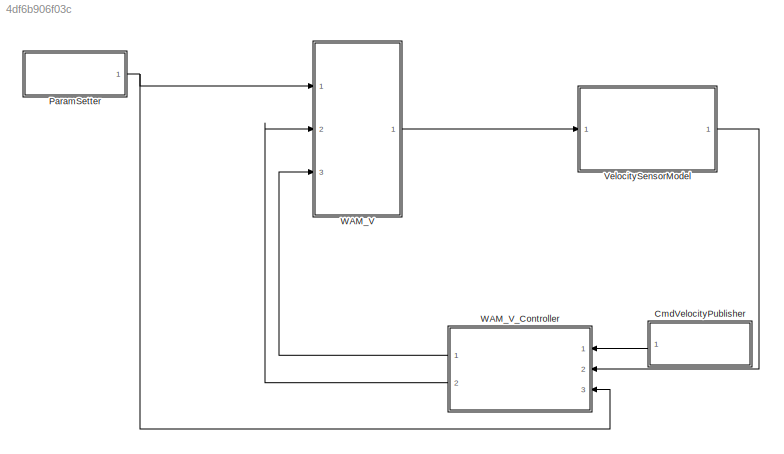
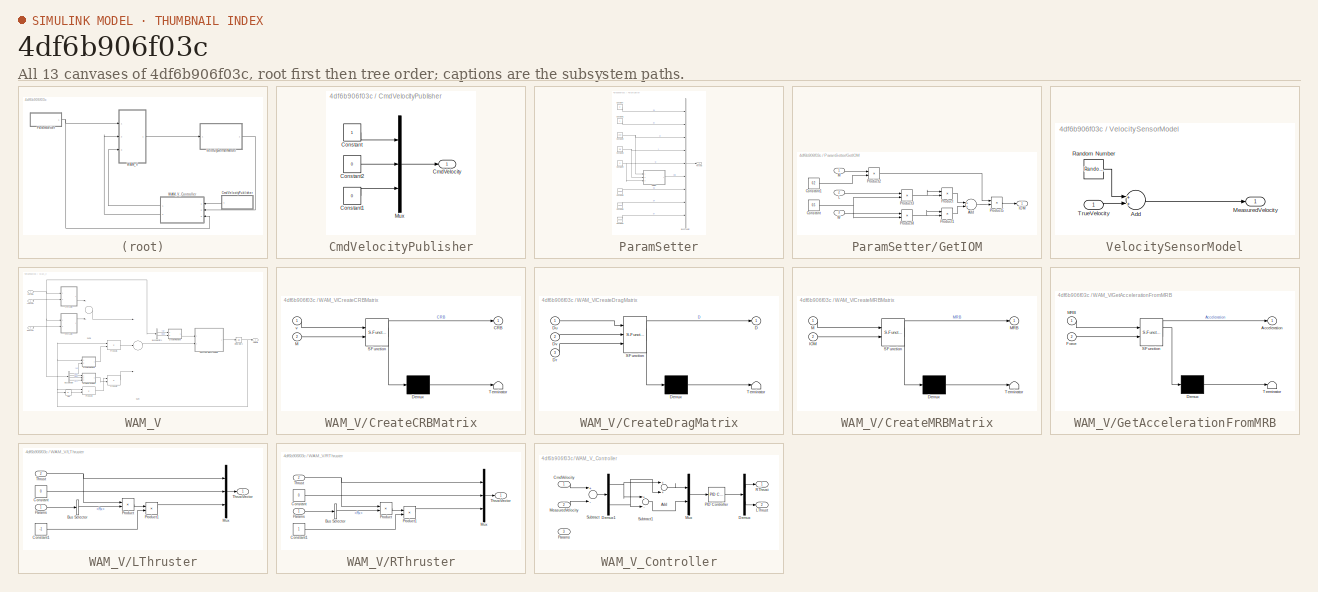
[diagram: thumbnail index - all 13 canvases of the model, root first then tree order]
MODEL slx_4df6b906f03c
KIND model
CONFIG AbsTol = auto
CONFIG EnableMultiTasking = off
CONFIG FixedStep = 0.001
CONFIG MaxStep = auto
CONFIG MinStep = auto
CONFIG RelTol = 1e-3
CONFIG SampleTimeConstraint = Unconstrained
CONFIG Solver = VariableStepAuto
CONFIG SolverName = VariableStepAuto
CONFIG StartTime = 0.0
CONFIG StopTime = 10
BLOCK [SubSystem] CmdVelocityPublisher
  Ports = [0, 1]
  RequestExecContextInheritance = off
  Variant = off
BLOCK [Outport] CmdVelocityPublisher/CmdVelocity
  IconDisplay = Port number
BLOCK [Constant] CmdVelocityPublisher/Constant
BLOCK [Constant] CmdVelocityPublisher/Constant1
  Value = 0
BLOCK [Constant] CmdVelocityPublisher/Constant2
  Value = 0
BLOCK [Mux] CmdVelocityPublisher/Mux
  DisplayOption = bar
  Inputs = 3
  Ports = [3, 1]
BLOCK [SubSystem] ParamSetter
  Ports = [0, 1]
  RequestExecContextInheritance = off
  Variant = off
BLOCK [BusCreator] ParamSetter/Bus Creator
  DisplayOption = bar
  InheritFromInputs = on
  Inputs = 9
  Ports = [9, 1]
BLOCK [Constant] ParamSetter/Constant
  Value = -2
BLOCK [Constant] ParamSetter/Constant1
BLOCK [Constant] ParamSetter/Constant2
  Value = 200
BLOCK [Constant] ParamSetter/Constant3
  Value = 3.5
BLOCK [Constant] ParamSetter/Constant4
  Value = 2
BLOCK [Constant] ParamSetter/Constant5
  Value = 1000
BLOCK [Constant] ParamSetter/Constant6
  Value = 1000
BLOCK [Constant] ParamSetter/Constant7
  Value = 30000
BLOCK [SubSystem] ParamSetter/GetIOM
  Ports = [3, 1]
  RequestExecContextInheritance = off
  Variant = off
BLOCK [Sum] ParamSetter/GetIOM/Add
  InputSameDT = off
  OutDataTypeStr = Inherit: Inherit via internal rule
  Ports = [2, 1]
  SaturateOnIntegerOverflow = off
BLOCK [Constant] ParamSetter/GetIOM/Constant
  Value = 0.5
BLOCK [Constant] ParamSetter/GetIOM/Constant1
  Value = 0.2
BLOCK [Outport] ParamSetter/GetIOM/IOM
  IconDisplay = Port number
BLOCK [Inport] ParamSetter/GetIOM/L
  IconDisplay = Port number
  Port = 2
BLOCK [Inport] ParamSetter/GetIOM/M
  IconDisplay = Port number
BLOCK [Product] ParamSetter/GetIOM/Product
  InputSameDT = off
  OutDataTypeStr = Inherit: Inherit via internal rule
  Ports = [2, 1]
  RndMeth = Floor
  SaturateOnIntegerOverflow = off
BLOCK [Product] ParamSetter/GetIOM/Product1
  InputSameDT = off
  OutDataTypeStr = Inherit: Inherit via internal rule
  Ports = [2, 1]
  RndMeth = Floor
  SaturateOnIntegerOverflow = off
BLOCK [Product] ParamSetter/GetIOM/Product2
  InputSameDT = off
  OutDataTypeStr = Inherit: Inherit via internal rule
  Ports = [2, 1]
  RndMeth = Floor
  SaturateOnIntegerOverflow = off
BLOCK [Product] ParamSetter/GetIOM/Product3
  InputSameDT = off
  OutDataTypeStr = Inherit: Inherit via internal rule
  Ports = [2, 1]
  RndMeth = Floor
  SaturateOnIntegerOverflow = off
BLOCK [Product] ParamSetter/GetIOM/Product4
  InputSameDT = off
  OutDataTypeStr = Inherit: Inherit via internal rule
  Ports = [2, 1]
  RndMeth = Floor
  SaturateOnIntegerOverflow = off
BLOCK [Product] ParamSetter/GetIOM/Product5
  InputSameDT = off
  OutDataTypeStr = Inherit: Inherit via internal rule
  Ports = [2, 1]
  RndMeth = Floor
  SaturateOnIntegerOverflow = off
BLOCK [Inport] ParamSetter/GetIOM/W
  IconDisplay = Port number
  Port = 3
BLOCK [Outport] ParamSetter/Params
  IconDisplay = Port number
BLOCK [SubSystem] VelocitySensorModel
  Ports = [1, 1]
  RequestExecContextInheritance = off
  Variant = off
BLOCK [Sum] VelocitySensorModel/Add
  InputSameDT = off
  OutDataTypeStr = Inherit: Inherit via internal rule
  Ports = [2, 1]
  SaturateOnIntegerOverflow = off
BLOCK [Outport] VelocitySensorModel/MeasuredVelocity
  IconDisplay = Port number
BLOCK [RandomNumber] VelocitySensorModel/Random Number
  SampleTime = 0.1
  Variance = 0
BLOCK [Inport] VelocitySensorModel/TrueVelocity
  IconDisplay = Port number
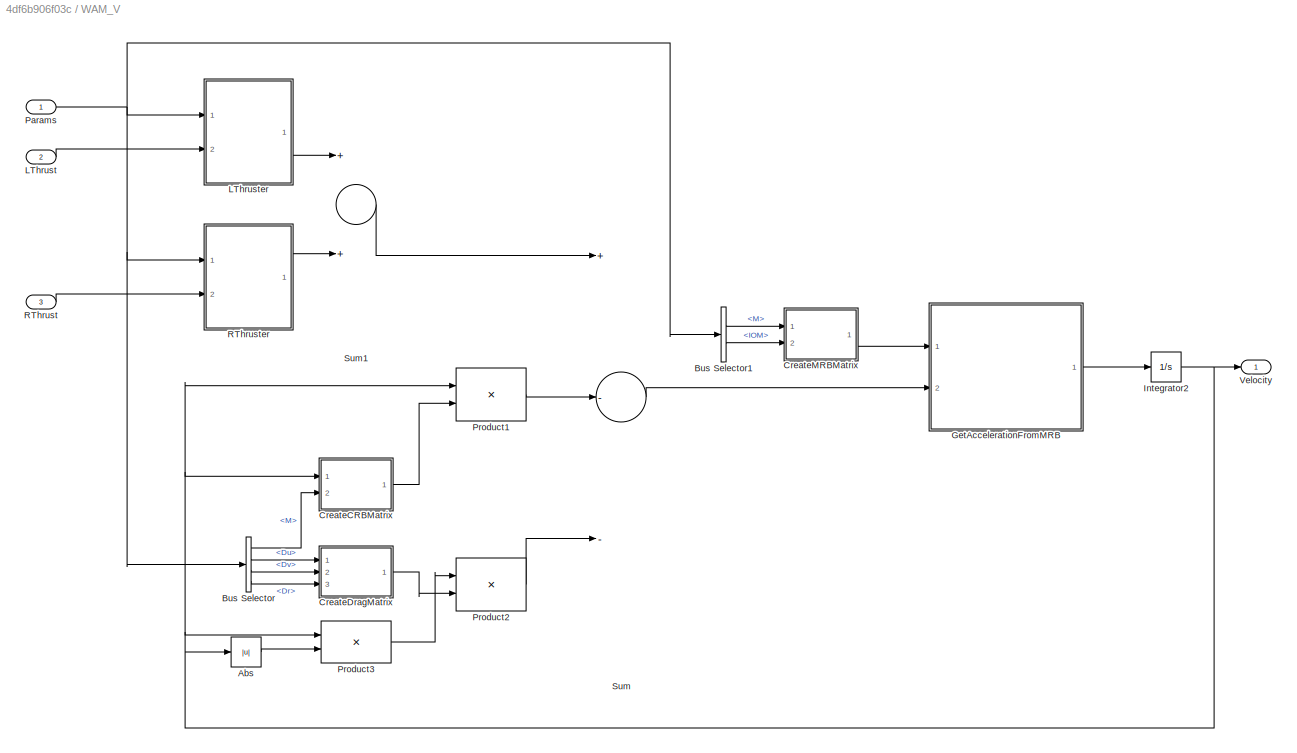
BLOCK [SubSystem] WAM_V
  Ports = [3, 1]
  RequestExecContextInheritance = off
  Variant = off
BLOCK [Abs] WAM_V/Abs
  SaturateOnIntegerOverflow = off
BLOCK [BusSelector] WAM_V/Bus Selector
  OutputAsBus = off
  OutputSignals = M,Du,Dv,Dr
  Ports = [1, 4]
BLOCK [BusSelector] WAM_V/Bus Selector1
  OutputAsBus = off
  OutputSignals = M,IOM
  Ports = [1, 2]
BLOCK [SubSystem] WAM_V/CreateCRBMatrix
  ErrorFcn = Stateflow.Translate.translate
  PermitHierarchicalResolution = ExplicitOnly
  Ports = [2, 1]
  RequestExecContextInheritance = off
  SFBlockType = MATLAB Function
  TreatAsAtomicUnit = on
  Variant = off
BLOCK [Demux] WAM_V/CreateCRBMatrix/ Demux 
  Outputs = 1
  Ports = [1, 1]
BLOCK [S-Function] WAM_V/CreateCRBMatrix/ SFunction 
  EnableBusSupport = on
  FunctionName = sf_sfun
  PortCounts = [2 2]
  Ports = [2, 2]
  SFcnIsStateOwnerBlock = off
  SFunctionDeploymentMode = off
  Tag = Stateflow S-Function wam_v_simulation 1
BLOCK [Terminator] WAM_V/CreateCRBMatrix/ Terminator 
BLOCK [Outport] WAM_V/CreateCRBMatrix/CRB
  IconDisplay = Port number
BLOCK [Inport] WAM_V/CreateCRBMatrix/M
  IconDisplay = Port number
  Port = 2
BLOCK [Inport] WAM_V/CreateCRBMatrix/v
  IconDisplay = Port number
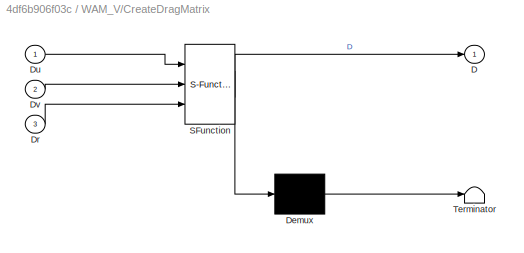
BLOCK [SubSystem] WAM_V/CreateDragMatrix
  ErrorFcn = Stateflow.Translate.translate
  PermitHierarchicalResolution = ExplicitOnly
  Ports = [3, 1]
  RequestExecContextInheritance = off
  SFBlockType = MATLAB Function
  TreatAsAtomicUnit = on
  Variant = off
BLOCK [Demux] WAM_V/CreateDragMatrix/ Demux 
  Outputs = 1
  Ports = [1, 1]
BLOCK [S-Function] WAM_V/CreateDragMatrix/ SFunction 
  EnableBusSupport = on
  FunctionName = sf_sfun
  PortCounts = [3 2]
  Ports = [3, 2]
  SFcnIsStateOwnerBlock = off
  SFunctionDeploymentMode = off
  Tag = Stateflow S-Function wam_v_simulation 2
BLOCK [Terminator] WAM_V/CreateDragMatrix/ Terminator 
BLOCK [Outport] WAM_V/CreateDragMatrix/D
  IconDisplay = Port number
BLOCK [Inport] WAM_V/CreateDragMatrix/Dr
  IconDisplay = Port number
  Port = 3
BLOCK [Inport] WAM_V/CreateDragMatrix/Du
  IconDisplay = Port number
BLOCK [Inport] WAM_V/CreateDragMatrix/Dv
  IconDisplay = Port number
  Port = 2
BLOCK [SubSystem] WAM_V/CreateMRBMatrix
  ErrorFcn = Stateflow.Translate.translate
  PermitHierarchicalResolution = ExplicitOnly
  Ports = [2, 1]
  RequestExecContextInheritance = off
  SFBlockType = MATLAB Function
  TreatAsAtomicUnit = on
  Variant = off
BLOCK [Demux] WAM_V/CreateMRBMatrix/ Demux 
  Outputs = 1
  Ports = [1, 1]
BLOCK [S-Function] WAM_V/CreateMRBMatrix/ SFunction 
  EnableBusSupport = on
  FunctionName = sf_sfun
  PortCounts = [2 2]
  Ports = [2, 2]
  SFcnIsStateOwnerBlock = off
  SFunctionDeploymentMode = off
  Tag = Stateflow S-Function wam_v_simulation 3
BLOCK [Terminator] WAM_V/CreateMRBMatrix/ Terminator 
BLOCK [Inport] WAM_V/CreateMRBMatrix/IOM
  IconDisplay = Port number
  Port = 2
BLOCK [Inport] WAM_V/CreateMRBMatrix/M
  IconDisplay = Port number
BLOCK [Outport] WAM_V/CreateMRBMatrix/MRB
  IconDisplay = Port number
BLOCK [SubSystem] WAM_V/GetAccelerationFromMRB
  ErrorFcn = Stateflow.Translate.translate
  PermitHierarchicalResolution = ExplicitOnly
  Ports = [2, 1]
  RequestExecContextInheritance = off
  SFBlockType = MATLAB Function
  TreatAsAtomicUnit = on
  Variant = off
BLOCK [Demux] WAM_V/GetAccelerationFromMRB/ Demux 
  Outputs = 1
  Ports = [1, 1]
BLOCK [S-Function] WAM_V/GetAccelerationFromMRB/ SFunction 
  EnableBusSupport = on
  FunctionName = sf_sfun
  PortCounts = [2 2]
  Ports = [2, 2]
  SFcnIsStateOwnerBlock = off
  SFunctionDeploymentMode = off
  Tag = Stateflow S-Function wam_v_simulation 4
BLOCK [Terminator] WAM_V/GetAccelerationFromMRB/ Terminator 
BLOCK [Outport] WAM_V/GetAccelerationFromMRB/Acceleration
  IconDisplay = Port number
BLOCK [Inport] WAM_V/GetAccelerationFromMRB/Force
  IconDisplay = Port number
  Port = 2
BLOCK [Inport] WAM_V/GetAccelerationFromMRB/MRB
  IconDisplay = Port number
BLOCK [Integrator] WAM_V/Integrator2
  Ports = [1, 1]
BLOCK [Inport] WAM_V/LThrust
  IconDisplay = Port number
  Port = 2
BLOCK [SubSystem] WAM_V/LThruster
  Ports = [2, 1]
  RequestExecContextInheritance = off
  Variant = off
BLOCK [BusSelector] WAM_V/LThruster/Bus Selector
  OutputAsBus = off
  OutputSignals = Rx
  Ports = [1, 1]
BLOCK [Constant] WAM_V/LThruster/Constant
  Value = 0
BLOCK [Constant] WAM_V/LThruster/Constant1
  Value = -1
BLOCK [Mux] WAM_V/LThruster/Mux
  DisplayOption = bar
  Inputs = 3
  Ports = [3, 1]
BLOCK [Inport] WAM_V/LThruster/Params
  IconDisplay = Port number
BLOCK [Product] WAM_V/LThruster/Product
  InputSameDT = off
  OutDataTypeStr = Inherit: Inherit via internal rule
  Ports = [2, 1]
  RndMeth = Floor
  SaturateOnIntegerOverflow = off
BLOCK [Product] WAM_V/LThruster/Product1
  InputSameDT = off
  OutDataTypeStr = Inherit: Inherit via internal rule
  Ports = [2, 1]
  RndMeth = Floor
  SaturateOnIntegerOverflow = off
BLOCK [Inport] WAM_V/LThruster/Thrust
  IconDisplay = Port number
  Port = 2
BLOCK [Outport] WAM_V/LThruster/ThrustVector
  IconDisplay = Port number
BLOCK [Inport] WAM_V/Params
  IconDisplay = Port number
BLOCK [Product] WAM_V/Product1
  InputSameDT = off
  Multiplication = Matrix(*)
  OutDataTypeStr = Inherit: Inherit via internal rule
  Ports = [2, 1]
  RndMeth = Floor
  SaturateOnIntegerOverflow = off
BLOCK [Product] WAM_V/Product2
  InputSameDT = off
  Multiplication = Matrix(*)
  OutDataTypeStr = Inherit: Inherit via internal rule
  Ports = [2, 1]
  RndMeth = Floor
  SaturateOnIntegerOverflow = off
BLOCK [Product] WAM_V/Product3
  InputSameDT = off
  OutDataTypeStr = Inherit: Inherit via internal rule
  Ports = [2, 1]
  RndMeth = Floor
  SaturateOnIntegerOverflow = off
BLOCK [Inport] WAM_V/RThrust
  IconDisplay = Port number
  Port = 3
BLOCK [SubSystem] WAM_V/RThruster
  Ports = [2, 1]
  RequestExecContextInheritance = off
  Variant = off
BLOCK [BusSelector] WAM_V/RThruster/Bus Selector
  OutputAsBus = off
  OutputSignals = Rx
  Ports = [1, 1]
BLOCK [Constant] WAM_V/RThruster/Constant
  Value = 0
BLOCK [Constant] WAM_V/RThruster/Constant1
BLOCK [Mux] WAM_V/RThruster/Mux
  DisplayOption = bar
  Inputs = 3
  Ports = [3, 1]
BLOCK [Inport] WAM_V/RThruster/Params
  IconDisplay = Port number
BLOCK [Product] WAM_V/RThruster/Product
  InputSameDT = off
  OutDataTypeStr = Inherit: Inherit via internal rule
  Ports = [2, 1]
  RndMeth = Floor
  SaturateOnIntegerOverflow = off
BLOCK [Product] WAM_V/RThruster/Product1
  InputSameDT = off
  OutDataTypeStr = Inherit: Inherit via internal rule
  Ports = [2, 1]
  RndMeth = Floor
  SaturateOnIntegerOverflow = off
BLOCK [Inport] WAM_V/RThruster/Thrust
  IconDisplay = Port number
  Port = 2
BLOCK [Outport] WAM_V/RThruster/ThrustVector
  IconDisplay = Port number
BLOCK [Sum] WAM_V/Sum
  InputSameDT = off
  Inputs = +--
  OutDataTypeStr = Inherit: Inherit via internal rule
  Ports = [3, 1]
  SaturateOnIntegerOverflow = off
BLOCK [Sum] WAM_V/Sum1
  InputSameDT = off
  OutDataTypeStr = Inherit: Inherit via internal rule
  Ports = [2, 1]
  SaturateOnIntegerOverflow = off
BLOCK [Outport] WAM_V/Velocity
  IconDisplay = Port number
BLOCK [SubSystem] WAM_V_Controller
  Ports = [3, 2]
  RequestExecContextInheritance = off
  Variant = off
BLOCK [Sum] WAM_V_Controller/Add
  InputSameDT = off
  OutDataTypeStr = Inherit: Inherit via internal rule
  Ports = [2, 1]
  SaturateOnIntegerOverflow = off
BLOCK [Inport] WAM_V_Controller/CmdVelocity
  IconDisplay = Port number
BLOCK [Demux] WAM_V_Controller/Demux
  DisplayOption = bar
  Outputs = 2
  Ports = [1, 2]
BLOCK [Demux] WAM_V_Controller/Demux1
  DisplayOption = bar
  Outputs = 3
  Ports = [1, 3]
BLOCK [Outport] WAM_V_Controller/LThrust
  IconDisplay = Port number
  Port = 2
BLOCK [Inport] WAM_V_Controller/MeasuredVelocity
  IconDisplay = Port number
  Port = 2
BLOCK [Mux] WAM_V_Controller/Mux
  DisplayOption = bar
  Inputs = 2
  Ports = [2, 1]
BLOCK [Reference] WAM_V_Controller/PID Controller  REF=simulink/Continuous/PID Controller
  Ports = [1, 1]
  SourceBlock = simulink/Continuous/PID Controller
  SourceProductBaseCode = SL
  SourceProductName = Simulink
  SourceType = PID 1dof
BLOCK [Inport] WAM_V_Controller/Params
  IconDisplay = Port number
  Port = 3
BLOCK [Outport] WAM_V_Controller/RThrust
  IconDisplay = Port number
BLOCK [Sum] WAM_V_Controller/Subtract
  InputSameDT = off
  Inputs = +-
  OutDataTypeStr = Inherit: Inherit via internal rule
  Ports = [2, 1]
  SaturateOnIntegerOverflow = off
BLOCK [Sum] WAM_V_Controller/Subtract1
  InputSameDT = off
  Inputs = +-
  OutDataTypeStr = Inherit: Inherit via internal rule
  Ports = [2, 1]
  SaturateOnIntegerOverflow = off
LINE CmdVelocityPublisher/Constant1:1 -> CmdVelocityPublisher/Mux:3
LINE CmdVelocityPublisher/Constant2:1 -> CmdVelocityPublisher/Mux:2
LINE CmdVelocityPublisher/Constant:1 -> CmdVelocityPublisher/Mux:1
LINE CmdVelocityPublisher/Mux:1 -> CmdVelocityPublisher/CmdVelocity:1
LINE CmdVelocityPublisher:1 -> WAM_V_Controller:1
LINE ParamSetter/Bus Creator:1 -> ParamSetter/Params:1
LINE ParamSetter/Constant1:1 -> ParamSetter/Bus Creator:2
NET ParamSetter/Constant2:1 -> ParamSetter/Bus Creator:3, ParamSetter/GetIOM:1
NET ParamSetter/Constant3:1 -> ParamSetter/Bus Creator:4, ParamSetter/GetIOM:2
NET ParamSetter/Constant4:1 -> ParamSetter/Bus Creator:5, ParamSetter/GetIOM:3
LINE ParamSetter/Constant5:1 -> ParamSetter/Bus Creator:7
LINE ParamSetter/Constant6:1 -> ParamSetter/Bus Creator:8
LINE ParamSetter/Constant7:1 -> ParamSetter/Bus Creator:9
LINE ParamSetter/Constant:1 -> ParamSetter/Bus Creator:1
LINE ParamSetter/GetIOM/Add:1 -> ParamSetter/GetIOM/Product5:2
LINE ParamSetter/GetIOM/Constant1:1 -> ParamSetter/GetIOM/Product2:2
NET ParamSetter/GetIOM/Constant:1 -> ParamSetter/GetIOM/Product3:2, ParamSetter/GetIOM/Product4:2
LINE ParamSetter/GetIOM/L:1 -> ParamSetter/GetIOM/Product3:1
LINE ParamSetter/GetIOM/M:1 -> ParamSetter/GetIOM/Product2:1
LINE ParamSetter/GetIOM/Product1:1 -> ParamSetter/GetIOM/Add:2
LINE ParamSetter/GetIOM/Product2:1 -> ParamSetter/GetIOM/Product5:1
NET ParamSetter/GetIOM/Product3:1 -> ParamSetter/GetIOM/Product:1, ParamSetter/GetIOM/Product:2
NET ParamSetter/GetIOM/Product4:1 -> ParamSetter/GetIOM/Product1:1, ParamSetter/GetIOM/Product1:2
LINE ParamSetter/GetIOM/Product5:1 -> ParamSetter/GetIOM/IOM:1
LINE ParamSetter/GetIOM/Product:1 -> ParamSetter/GetIOM/Add:1
LINE ParamSetter/GetIOM/W:1 -> ParamSetter/GetIOM/Product4:1
LINE ParamSetter/GetIOM:1 -> ParamSetter/Bus Creator:6
NET ParamSetter:1 -> WAM_V:1, WAM_V_Controller:3
LINE VelocitySensorModel/Add:1 -> VelocitySensorModel/MeasuredVelocity:1
LINE VelocitySensorModel/Random Number:1 -> VelocitySensorModel/Add:1
LINE VelocitySensorModel/TrueVelocity:1 -> VelocitySensorModel/Add:2
LINE VelocitySensorModel:1 -> WAM_V_Controller:2
LINE WAM_V/Abs:1 -> WAM_V/Product3:2
LINE WAM_V/Bus Selector1:1 -> WAM_V/CreateMRBMatrix:1
LINE WAM_V/Bus Selector1:2 -> WAM_V/CreateMRBMatrix:2
LINE WAM_V/Bus Selector:1 -> WAM_V/CreateCRBMatrix:2
LINE WAM_V/Bus Selector:2 -> WAM_V/CreateDragMatrix:1
LINE WAM_V/Bus Selector:3 -> WAM_V/CreateDragMatrix:2
LINE WAM_V/Bus Selector:4 -> WAM_V/CreateDragMatrix:3
LINE WAM_V/CreateCRBMatrix:1 -> WAM_V/Product1:2
LINE WAM_V/CreateDragMatrix:1 -> WAM_V/Product2:2
LINE WAM_V/CreateMRBMatrix:1 -> WAM_V/GetAccelerationFromMRB:1
LINE WAM_V/GetAccelerationFromMRB:1 -> WAM_V/Integrator2:1
NET WAM_V/Integrator2:1 -> WAM_V/Abs:1, WAM_V/CreateCRBMatrix:1, WAM_V/Product1:1, WAM_V/Product3:1, WAM_V/Velocity:1
LINE WAM_V/LThrust:1 -> WAM_V/LThruster:2
LINE WAM_V/LThruster/Bus Selector:1 -> WAM_V/LThruster/Product:2
LINE WAM_V/LThruster/Constant1:1 -> WAM_V/LThruster/Product1:2
LINE WAM_V/LThruster/Constant:1 -> WAM_V/LThruster/Mux:2
LINE WAM_V/LThruster/Mux:1 -> WAM_V/LThruster/ThrustVector:1
LINE WAM_V/LThruster/Params:1 -> WAM_V/LThruster/Bus Selector:1
LINE WAM_V/LThruster/Product1:1 -> WAM_V/LThruster/Mux:3
LINE WAM_V/LThruster/Product:1 -> WAM_V/LThruster/Product1:1
NET WAM_V/LThruster/Thrust:1 -> WAM_V/LThruster/Mux:1, WAM_V/LThruster/Product:1
LINE WAM_V/LThruster:1 -> WAM_V/Sum1:1
NET WAM_V/Params:1 -> WAM_V/Bus Selector1:1, WAM_V/Bus Selector:1, WAM_V/LThruster:1, WAM_V/RThruster:1
LINE WAM_V/Product1:1 -> WAM_V/Sum:2
LINE WAM_V/Product2:1 -> WAM_V/Sum:3
LINE WAM_V/Product3:1 -> WAM_V/Product2:1
LINE WAM_V/RThrust:1 -> WAM_V/RThruster:2
LINE WAM_V/RThruster/Bus Selector:1 -> WAM_V/RThruster/Product:2
LINE WAM_V/RThruster/Constant1:1 -> WAM_V/RThruster/Product1:2
LINE WAM_V/RThruster/Constant:1 -> WAM_V/RThruster/Mux:2
LINE WAM_V/RThruster/Mux:1 -> WAM_V/RThruster/ThrustVector:1
LINE WAM_V/RThruster/Params:1 -> WAM_V/RThruster/Bus Selector:1
LINE WAM_V/RThruster/Product1:1 -> WAM_V/RThruster/Mux:3
LINE WAM_V/RThruster/Product:1 -> WAM_V/RThruster/Product1:1
NET WAM_V/RThruster/Thrust:1 -> WAM_V/RThruster/Mux:1, WAM_V/RThruster/Product:1
LINE WAM_V/RThruster:1 -> WAM_V/Sum1:2
LINE WAM_V/Sum1:1 -> WAM_V/Sum:1
LINE WAM_V/Sum:1 -> WAM_V/GetAccelerationFromMRB:2
LINE WAM_V:1 -> VelocitySensorModel:1
LINE WAM_V_Controller/Add:1 -> WAM_V_Controller/Mux:1
LINE WAM_V_Controller/CmdVelocity:1 -> WAM_V_Controller/Subtract:1
NET WAM_V_Controller/Demux1:1 -> WAM_V_Controller/Add:1, WAM_V_Controller/Subtract1:1
NET WAM_V_Controller/Demux1:3 -> WAM_V_Controller/Add:2, WAM_V_Controller/Subtract1:2
LINE WAM_V_Controller/Demux:1 -> WAM_V_Controller/RThrust:1
LINE WAM_V_Controller/Demux:2 -> WAM_V_Controller/LThrust:1
LINE WAM_V_Controller/MeasuredVelocity:1 -> WAM_V_Controller/Subtract:2
LINE WAM_V_Controller/Mux:1 -> WAM_V_Controller/PID Controller:1
LINE WAM_V_Controller/PID Controller:1 -> WAM_V_Controller/Demux:1
LINE WAM_V_Controller/Subtract1:1 -> WAM_V_Controller/Mux:2
LINE WAM_V_Controller/Subtract:1 -> WAM_V_Controller/Demux1:1
LINE WAM_V_Controller:1 -> WAM_V:3
LINE WAM_V_Controller:2 -> WAM_V:2
note: NET lines group one-source signal fan-out (src -> all destinations, sorted); 1:1 wires keep LINE
CHART WAM_V/CreateCRBMatrix states=1 transitions=1
  STATE_LABEL 'eML_blk_kernel()'
  STATE_LABEL 'SCRIPT:\nfunction CRB = fcn(v,M)\n\nCRB=zeros(3,3);\nCRB(1,2) = -M*v(2);\nCRB(1,3) =  M*v(1);\nCRB(2,1) =  M*v(2);\nCRB(3,1) = -M*v(1);'
CHART WAM_V/CreateDragMatrix states=1 transitions=1
  STATE_LABEL 'eML_blk_kernel()'
  STATE_LABEL 'SCRIPT:\nfunction D = fcn(Du, Dv, Dr)\n\nD = diag( [ Du, Dv, Dr ] );\n'
CHART WAM_V/CreateMRBMatrix states=1 transitions=1
  STATE_LABEL 'eML_blk_kernel()'
  STATE_LABEL 'SCRIPT:\nfunction MRB = fcn(M,IOM)\n\nMRB=zeros(3,3);\nMRB(1,1) = M;\nMRB(2,2) = M;\nMRB(3,3) = IOM;'
CHART WAM_V/GetAccelerationFromMRB states=1 transitions=1
  STATE_LABEL 'eML_blk_kernel()'
  STATE_LABEL 'SCRIPT:\nfunction Acceleration = fcn(MRB,Force)\nAcceleration = [0,0,0];\nAcceleration(1) = Force(1)/MRB(1,1);\nAcceleration(2) = Force(2)/MRB(2,2);\nAcceleration(3) = Force(3)/MRB(3,3);\n'
